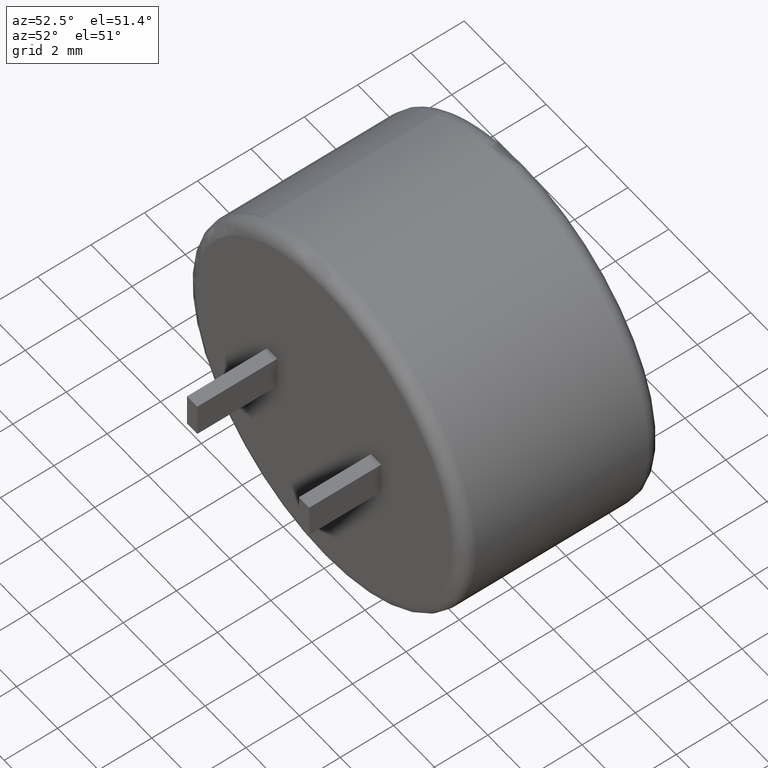
[diagram: clean part render]
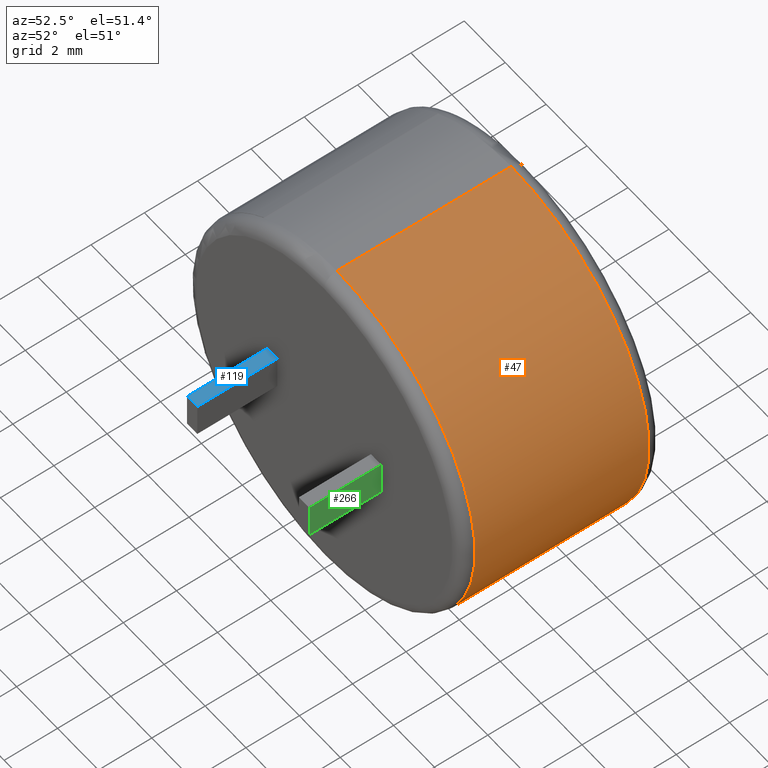
[diagram: same view with three faces highlighted in distinct colors, each labeled with its STEP entity id]
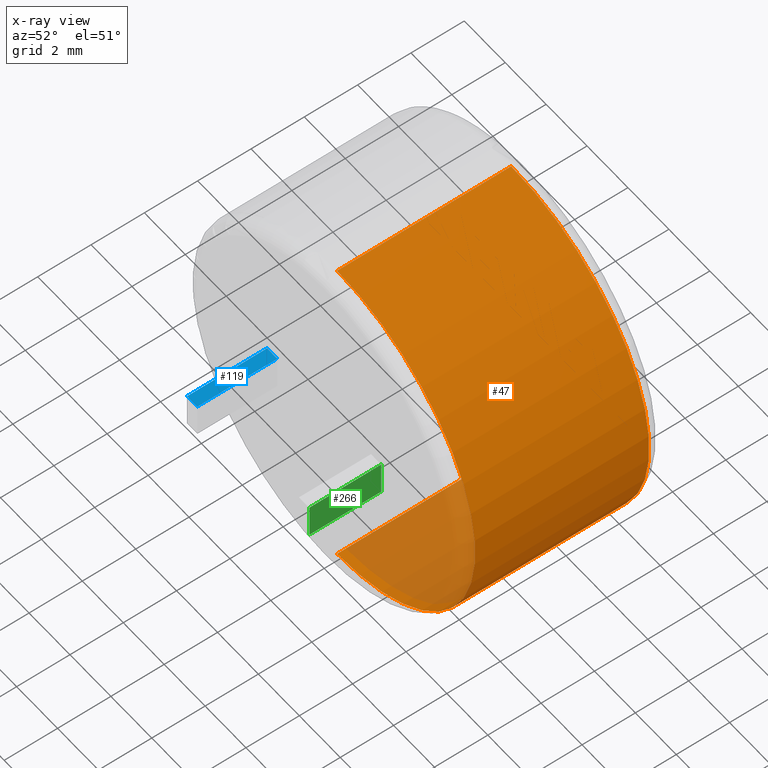
[diagram: x-ray of the same camera — body ghosted, the three highlighted faces saturated]
A machine part, auxiliary view with three faces highlighted in distinct colors.
The next image is the same camera in x-ray (body ghosted, the three faces saturated) — at least one of them is partly hidden behind the body in this view.
Their STEP definitions:

[orange] entity #47 — the highlighted cylindrical surface (partial cylindrical patch) has radius 6.75 mm, axis along (-0, -1, -0).
#47 = ADVANCED_FACE ( 'NONE', ( #120 ), #460, .T. ) ;
#51 = DIRECTION ( 'NONE',  ( -0.0000000000000000000, -1.000000000000000000, -0.0000000000000000000 ) ) ;
#120 = FACE_OUTER_BOUND ( 'NONE', #1480, .T. ) ;
#141 = CARTESIAN_POINT ( 'NONE',  ( 8.266365894244634300E-016, 7.016250000000000300, 6.750000000000000000 ) ) ;
#279 = EDGE_CURVE ( 'NONE', #1586, #967, #2746, .T. ) ;
#379 = DIRECTION ( 'NONE',  ( 0.0000000000000000000, 1.000000000000000000, 0.0000000000000000000 ) ) ;
#460 = CYLINDRICAL_SURFACE ( 'NONE', #1705, 6.750000000000000000 ) ;
#498 = CARTESIAN_POINT ( 'NONE',  ( 0.0000000000000000000, 7.500000000000000000, -6.750000000000000000 ) ) ;
#543 = EDGE_CURVE ( 'NONE', #1872, #1884, #759, .T. ) ;
#608 = EDGE_CURVE ( 'NONE', #967, #1884, #1832, .T. ) ;
#759 = LINE ( 'NONE', #498, #1302 ) ;
#865 = CARTESIAN_POINT ( 'NONE',  ( 0.0000000000000000000, 0.4837499999999997900, -6.750000000000000000 ) ) ;
#898 = CIRCLE ( 'NONE', #1630, 6.750000000000000000 ) ;
#967 = VERTEX_POINT ( 'NONE', #1136 ) ;
#1136 = CARTESIAN_POINT ( 'NONE',  ( 8.266365894244634300E-016, 0.4837499999999997900, 6.750000000000000000 ) ) ;
#1189 = DIRECTION ( 'NONE',  ( -0.0000000000000000000, -1.000000000000000000, -0.0000000000000000000 ) ) ;
#1302 = VECTOR ( 'NONE', #51, 1000.000000000000000 ) ;
#1353 = ORIENTED_EDGE ( 'NONE', *, *, #543, .F. ) ;
#1480 = EDGE_LOOP ( 'NONE', ( #2008, #2042, #1855, #1353 ) ) ;
#1561 = CARTESIAN_POINT ( 'NONE',  ( 0.0000000000000000000, 7.500000000000000000, 0.0000000000000000000 ) ) ;
#1586 = VERTEX_POINT ( 'NONE', #141 ) ;
#1601 = DIRECTION ( 'NONE',  ( -0.0000000000000000000, -1.000000000000000000, -0.0000000000000000000 ) ) ;
#1630 = AXIS2_PLACEMENT_3D ( 'NONE', #1946, #1752, #2613 ) ;
#1705 = AXIS2_PLACEMENT_3D ( 'NONE', #1561, #1601, #2021 ) ;
#1745 = AXIS2_PLACEMENT_3D ( 'NONE', #2684, #379, #2693 ) ;
#1752 = DIRECTION ( 'NONE',  ( -0.0000000000000000000, -1.000000000000000000, -0.0000000000000000000 ) ) ;
#1803 = VECTOR ( 'NONE', #1189, 1000.000000000000000 ) ;
#1832 = CIRCLE ( 'NONE', #1745, 6.750000000000000000 ) ;
#1855 = ORIENTED_EDGE ( 'NONE', *, *, #608, .T. ) ;
#1856 = CARTESIAN_POINT ( 'NONE',  ( 0.0000000000000000000, 7.016250000000000300, -6.750000000000000000 ) ) ;
#1864 = EDGE_CURVE ( 'NONE', #1872, #1586, #898, .T. ) ;
#1872 = VERTEX_POINT ( 'NONE', #1856 ) ;
#1884 = VERTEX_POINT ( 'NONE', #865 ) ;
#1946 = CARTESIAN_POINT ( 'NONE',  ( 0.0000000000000000000, 7.016250000000000300, 0.0000000000000000000 ) ) ;
#2008 = ORIENTED_EDGE ( 'NONE', *, *, #1864, .T. ) ;
#2021 = DIRECTION ( 'NONE',  ( 0.0000000000000000000, 0.0000000000000000000, -1.000000000000000000 ) ) ;
#2042 = ORIENTED_EDGE ( 'NONE', *, *, #279, .T. ) ;
#2474 = CARTESIAN_POINT ( 'NONE',  ( 8.266365894244634300E-016, 7.500000000000000000, 6.750000000000000000 ) ) ;
#2613 = DIRECTION ( 'NONE',  ( 0.0000000000000000000, 0.0000000000000000000, 1.000000000000000000 ) ) ;
#2684 = CARTESIAN_POINT ( 'NONE',  ( 0.0000000000000000000, 0.4837499999999997900, 0.0000000000000000000 ) ) ;
#2693 = DIRECTION ( 'NONE',  ( 0.0000000000000000000, 0.0000000000000000000, 1.000000000000000000 ) ) ;
#2746 = LINE ( 'NONE', #2474, #1803 ) ;

[blue] entity #119 — the highlighted planar face has unit normal (0, 0, 1).
#31 = CARTESIAN_POINT ( 'NONE',  ( -2.289999999999999100, -3.000000000000000000, 0.6499999999999986900 ) ) ;
#60 = ORIENTED_EDGE ( 'NONE', *, *, #85, .F. ) ;
#85 = EDGE_CURVE ( 'NONE', #1644, #2055, #2515, .T. ) ;
#119 = ADVANCED_FACE ( 'NONE', ( #1837 ), #326, .T. ) ;
#255 = VECTOR ( 'NONE', #545, 1000.000000000000000 ) ;
#285 = VECTOR ( 'NONE', #1175, 1000.000000000000000 ) ;
#301 = CARTESIAN_POINT ( 'NONE',  ( -2.789999999999999100, 0.0000000000000000000, 0.6499999999999988000 ) ) ;
#326 = PLANE ( 'NONE',  #2567 ) ;
#329 = CARTESIAN_POINT ( 'NONE',  ( -2.789999999999999100, -3.000000000000000000, 0.6499999999999988000 ) ) ;
#351 = EDGE_CURVE ( 'NONE', #2055, #1172, #494, .T. ) ;
#391 = VECTOR ( 'NONE', #2717, 1000.000000000000000 ) ;
#458 = VERTEX_POINT ( 'NONE', #31 ) ;
#467 = DIRECTION ( 'NONE',  ( 1.000000000000000000, 0.0000000000000000000, -2.168404344971008900E-016 ) ) ;
#494 = LINE ( 'NONE', #2520, #391 ) ;
#545 = DIRECTION ( 'NONE',  ( -0.0000000000000000000, 1.000000000000000000, -0.0000000000000000000 ) ) ;
#833 = ORIENTED_EDGE ( 'NONE', *, *, #1209, .T. ) ;
#939 = LINE ( 'NONE', #2561, #2559 ) ;
#1172 = VERTEX_POINT ( 'NONE', #2653 ) ;
#1175 = DIRECTION ( 'NONE',  ( -0.0000000000000000000, 1.000000000000000000, -0.0000000000000000000 ) ) ;
#1205 = LINE ( 'NONE', #2231, #285 ) ;
#1209 = EDGE_CURVE ( 'NONE', #458, #1172, #1205, .T. ) ;
#1385 = DIRECTION ( 'NONE',  ( 2.168404344971008900E-016, 0.0000000000000000000, 1.000000000000000000 ) ) ;
#1432 = EDGE_LOOP ( 'NONE', ( #2487, #60, #2076, #833 ) ) ;
#1644 = VERTEX_POINT ( 'NONE', #329 ) ;
#1806 = DIRECTION ( 'NONE',  ( 1.000000000000000000, 0.0000000000000000000, -2.168404344971008900E-016 ) ) ;
#1837 = FACE_OUTER_BOUND ( 'NONE', #1432, .T. ) ;
#2004 = CARTESIAN_POINT ( 'NONE',  ( -2.789999999999999100, -3.000000000000000000, 0.6499999999999988000 ) ) ;
#2055 = VERTEX_POINT ( 'NONE', #301 ) ;
#2076 = ORIENTED_EDGE ( 'NONE', *, *, #2424, .T. ) ;
#2231 = CARTESIAN_POINT ( 'NONE',  ( -2.289999999999999100, -3.000000000000000000, 0.6499999999999986900 ) ) ;
#2424 = EDGE_CURVE ( 'NONE', #1644, #458, #939, .T. ) ;
#2445 = CARTESIAN_POINT ( 'NONE',  ( -2.789999999999999100, -3.000000000000000000, 0.6499999999999988000 ) ) ;
#2487 = ORIENTED_EDGE ( 'NONE', *, *, #351, .F. ) ;
#2515 = LINE ( 'NONE', #2004, #255 ) ;
#2520 = CARTESIAN_POINT ( 'NONE',  ( -2.789999999999999100, 0.0000000000000000000, 0.6499999999999988000 ) ) ;
#2559 = VECTOR ( 'NONE', #467, 1000.000000000000000 ) ;
#2561 = CARTESIAN_POINT ( 'NONE',  ( -2.789999999999999100, -3.000000000000000000, 0.6499999999999988000 ) ) ;
#2567 = AXIS2_PLACEMENT_3D ( 'NONE', #2445, #1385, #1806 ) ;
#2653 = CARTESIAN_POINT ( 'NONE',  ( -2.289999999999999100, 0.0000000000000000000, 0.6499999999999986900 ) ) ;
#2717 = DIRECTION ( 'NONE',  ( 1.000000000000000000, 0.0000000000000000000, -2.168404344971008900E-016 ) ) ;

[green] entity #266 — the highlighted planar face has unit normal (-1, 0, 0).
#71 = EDGE_CURVE ( 'NONE', #1987, #1811, #1611, .T. ) ;
#102 = CARTESIAN_POINT ( 'NONE',  ( 2.790000000000000000, -2.700000000000000200, 0.6499999999999956900 ) ) ;
#143 = DIRECTION ( 'NONE',  ( 0.0000000000000000000, 0.0000000000000000000, 1.000000000000000000 ) ) ;
#266 = ADVANCED_FACE ( 'NONE', ( #2007 ), #355, .F. ) ;
#270 = ORIENTED_EDGE ( 'NONE', *, *, #2258, .T. ) ;
#311 = VECTOR ( 'NONE', #2410, 1000.000000000000000 ) ;
#327 = VECTOR ( 'NONE', #1365, 1000.000000000000000 ) ;
#338 = VERTEX_POINT ( 'NONE', #1250 ) ;
#355 = PLANE ( 'NONE',  #1854 ) ;
#509 = CARTESIAN_POINT ( 'NONE',  ( 2.790000000000000000, 0.0000000000000000000, -4.242524731677385800E-015 ) ) ;
#535 = CARTESIAN_POINT ( 'NONE',  ( 2.790000000000000000, -2.700000000000000200, 0.6499999999999956900 ) ) ;
#570 = CARTESIAN_POINT ( 'NONE',  ( 2.790000000000000000, -2.700000000000000200, -0.6500000000000042400 ) ) ;
#808 = DIRECTION ( 'NONE',  ( -1.000000000000000000, 0.0000000000000000000, 0.0000000000000000000 ) ) ;
#844 = ORIENTED_EDGE ( 'NONE', *, *, #2562, .T. ) ;
#883 = EDGE_CURVE ( 'NONE', #2411, #1987, #1237, .T. ) ;
#1143 = VECTOR ( 'NONE', #2030, 1000.000000000000000 ) ;
#1237 = LINE ( 'NONE', #2545, #2230 ) ;
#1250 = CARTESIAN_POINT ( 'NONE',  ( 2.790000000000000000, 0.0000000000000000000, -0.6500000000000042400 ) ) ;
#1259 = CARTESIAN_POINT ( 'NONE',  ( 2.790000000000000000, -2.700000000000000200, -0.6500000000000042400 ) ) ;
#1365 = DIRECTION ( 'NONE',  ( -0.0000000000000000000, 1.000000000000000000, -0.0000000000000000000 ) ) ;
#1611 = LINE ( 'NONE', #102, #327 ) ;
#1693 = DIRECTION ( 'NONE',  ( 0.0000000000000000000, 0.0000000000000000000, 1.000000000000000000 ) ) ;
#1811 = VERTEX_POINT ( 'NONE', #2273 ) ;
#1823 = CARTESIAN_POINT ( 'NONE',  ( 2.790000000000000000, -2.700000000000000200, -4.242524731677385800E-015 ) ) ;
#1854 = AXIS2_PLACEMENT_3D ( 'NONE', #1823, #808, #143 ) ;
#1987 = VERTEX_POINT ( 'NONE', #535 ) ;
#2007 = FACE_OUTER_BOUND ( 'NONE', #2581, .T. ) ;
#2030 = DIRECTION ( 'NONE',  ( -0.0000000000000000000, 1.000000000000000000, -0.0000000000000000000 ) ) ;
#2230 = VECTOR ( 'NONE', #1693, 1000.000000000000000 ) ;
#2258 = EDGE_CURVE ( 'NONE', #2411, #338, #2480, .T. ) ;
#2273 = CARTESIAN_POINT ( 'NONE',  ( 2.790000000000000000, 0.0000000000000000000, 0.6499999999999956900 ) ) ;
#2410 = DIRECTION ( 'NONE',  ( 0.0000000000000000000, 0.0000000000000000000, 1.000000000000000000 ) ) ;
#2411 = VERTEX_POINT ( 'NONE', #1259 ) ;
#2480 = LINE ( 'NONE', #570, #1143 ) ;
#2522 = ORIENTED_EDGE ( 'NONE', *, *, #71, .F. ) ;
#2545 = CARTESIAN_POINT ( 'NONE',  ( 2.790000000000000000, -2.700000000000000200, -0.6500000000000042400 ) ) ;
#2558 = ORIENTED_EDGE ( 'NONE', *, *, #883, .F. ) ;
#2562 = EDGE_CURVE ( 'NONE', #338, #1811, #2765, .T. ) ;
#2581 = EDGE_LOOP ( 'NONE', ( #844, #2522, #2558, #270 ) ) ;
#2765 = LINE ( 'NONE', #509, #311 ) ;